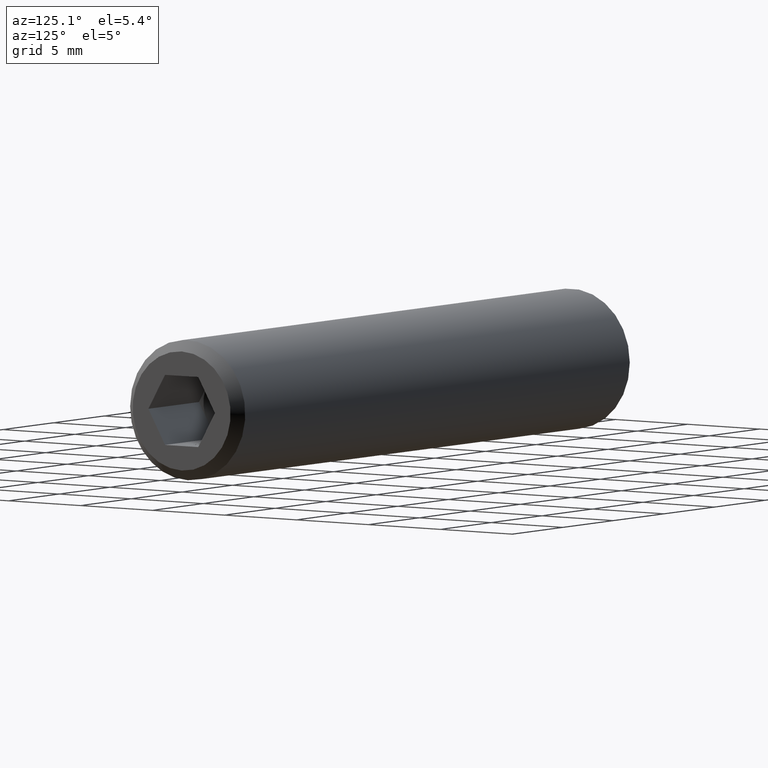
[diagram: clean part render]
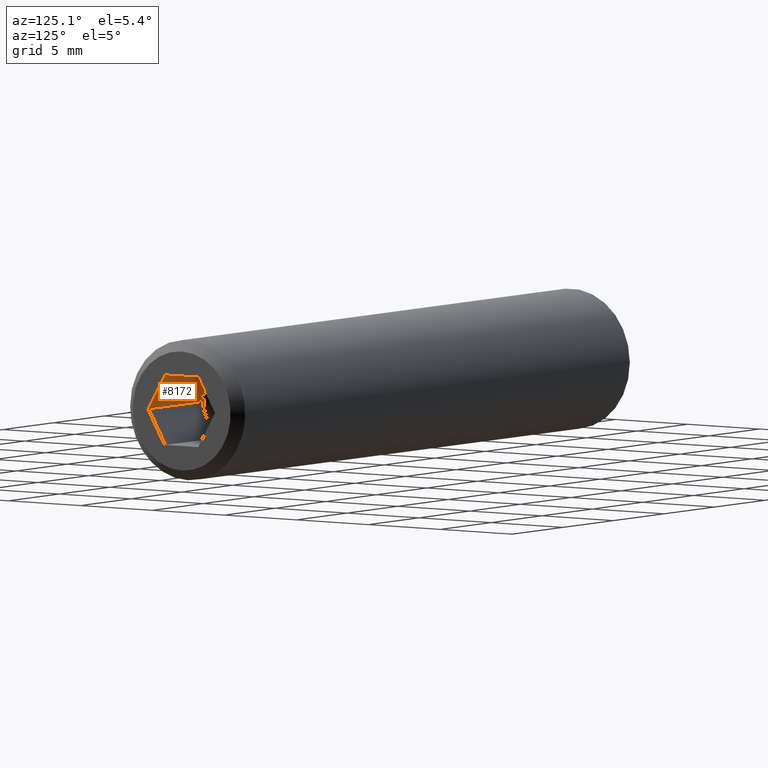
[diagram: same view with one face highlighted and labeled with its STEP entity id]
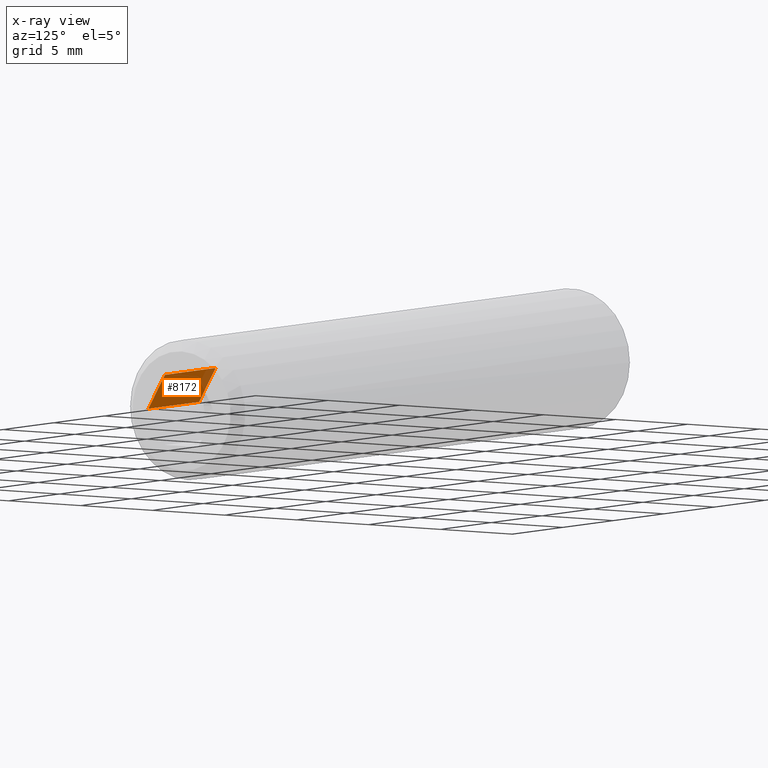
[diagram: x-ray of the same camera — body ghosted, the highlighted face saturated]
A machine part, auxiliary view. The second image highlights one B-rep face of the part: STEP entity #8172.
The next image is the same camera in x-ray: the body ghosted, the highlighted face saturated — about 9% of this face is hidden behind the body in this view.
In plain terms, the highlighted planar face has unit normal (-0, -0.866, 0.5).
Its self-contained STEP definition (entity closure, byte-faithful):
#7 = ORIENTED_EDGE ( 'NONE', *, *, #12404, .F. ) ;
#481 = EDGE_CURVE ( 'NONE', #2582, #12248, #14324, .T. ) ;
#772 = VERTEX_POINT ( 'NONE', #13975 ) ;
#803 = AXIS2_PLACEMENT_3D ( 'NONE', #17278, #13424, #17441 ) ;
#886 = CARTESIAN_POINT ( 'NONE',  ( 40.00000000000000000, -2.309401076758506000, 0.0000000000000000000 ) ) ;
#1783 = VECTOR ( 'NONE', #6919, 1000.000000000000100 ) ;
#2582 = VERTEX_POINT ( 'NONE', #11147 ) ;
#4101 = LINE ( 'NONE', #6159, #13849 ) ;
#4182 = CARTESIAN_POINT ( 'NONE',  ( 35.00000000000000000, -1.154700538379254300, 1.999999999999999600 ) ) ;
#4550 = DIRECTION ( 'NONE',  ( 0.0000000000000000000, -0.5000000000000003300, -0.8660254037844384900 ) ) ;
#4562 = ORIENTED_EDGE ( 'NONE', *, *, #481, .T. ) ;
#4911 = DIRECTION ( 'NONE',  ( 1.000000000000000000, -0.0000000000000000000, 6.123031769111886300E-017 ) ) ;
#5101 = VERTEX_POINT ( 'NONE', #886 ) ;
#5462 = CARTESIAN_POINT ( 'NONE',  ( 35.00000000000000000, -1.154700538379254300, 1.999999999999999600 ) ) ;
#6159 = CARTESIAN_POINT ( 'NONE',  ( 35.00000000000000000, -2.309401076758506500, -3.109184591373183400E-016 ) ) ;
#6919 = DIRECTION ( 'NONE',  ( 0.0000000000000000000, -0.5000000000000003300, -0.8660254037844384900 ) ) ;
#7276 = CARTESIAN_POINT ( 'NONE',  ( 40.00000000000000000, -1.154700538379254300, 2.000000000000000000 ) ) ;
#7317 = LINE ( 'NONE', #4182, #1783 ) ;
#7979 = PLANE ( 'NONE',  #803 ) ;
#8172 = ADVANCED_FACE ( 'NONE', ( #12824 ), #7979, .F. ) ;
#8602 = CARTESIAN_POINT ( 'NONE',  ( 35.00000000000000000, -1.154700538379254300, 1.999999999999999600 ) ) ;
#8861 = EDGE_CURVE ( 'NONE', #772, #5101, #4101, .T. ) ;
#10873 = LINE ( 'NONE', #5462, #13619 ) ;
#11100 = EDGE_CURVE ( 'NONE', #12324, #772, #10873, .T. ) ;
#11147 = CARTESIAN_POINT ( 'NONE',  ( 35.00000000000000000, -1.154700538379254300, 1.999999999999999600 ) ) ;
#12121 = ORIENTED_EDGE ( 'NONE', *, *, #8861, .F. ) ;
#12248 = VERTEX_POINT ( 'NONE', #14162 ) ;
#12324 = VERTEX_POINT ( 'NONE', #14813 ) ;
#12404 = EDGE_CURVE ( 'NONE', #2582, #12324, #7317, .T. ) ;
#12824 = FACE_OUTER_BOUND ( 'NONE', #17268, .T. ) ;
#13331 = EDGE_CURVE ( 'NONE', #12248, #5101, #15788, .T. ) ;
#13424 = DIRECTION ( 'NONE',  ( -3.061515884555945000E-017, -0.8660254037844384900, 0.5000000000000004400 ) ) ;
#13619 = VECTOR ( 'NONE', #13639, 1000.000000000000100 ) ;
#13639 = DIRECTION ( 'NONE',  ( 0.0000000000000000000, -0.5000000000000003300, -0.8660254037844384900 ) ) ;
#13849 = VECTOR ( 'NONE', #4911, 1000.000000000000000 ) ;
#13975 = CARTESIAN_POINT ( 'NONE',  ( 35.00000000000000000, -2.309401076758506500, -3.109184591373183400E-016 ) ) ;
#14162 = CARTESIAN_POINT ( 'NONE',  ( 40.00000000000000000, -1.154700538379254300, 2.000000000000000000 ) ) ;
#14272 = DIRECTION ( 'NONE',  ( 1.000000000000000000, -0.0000000000000000000, 6.123031769111886300E-017 ) ) ;
#14302 = ORIENTED_EDGE ( 'NONE', *, *, #11100, .F. ) ;
#14324 = LINE ( 'NONE', #8602, #14554 ) ;
#14554 = VECTOR ( 'NONE', #14272, 1000.000000000000000 ) ;
#14813 = CARTESIAN_POINT ( 'NONE',  ( 35.00000000000000000, -1.732050807568877600, 1.000000000000002400 ) ) ;
#14823 = ORIENTED_EDGE ( 'NONE', *, *, #13331, .T. ) ;
#14957 = VECTOR ( 'NONE', #4550, 1000.000000000000100 ) ;
#15788 = LINE ( 'NONE', #7276, #14957 ) ;
#17268 = EDGE_LOOP ( 'NONE', ( #14823, #12121, #14302, #7, #4562 ) ) ;
#17278 = CARTESIAN_POINT ( 'NONE',  ( 35.00000000000000000, -1.154700538379254300, 1.999999999999999600 ) ) ;
#17441 = DIRECTION ( 'NONE',  ( 0.0000000000000000000, -0.5000000000000003300, -0.8660254037844383700 ) ) ;